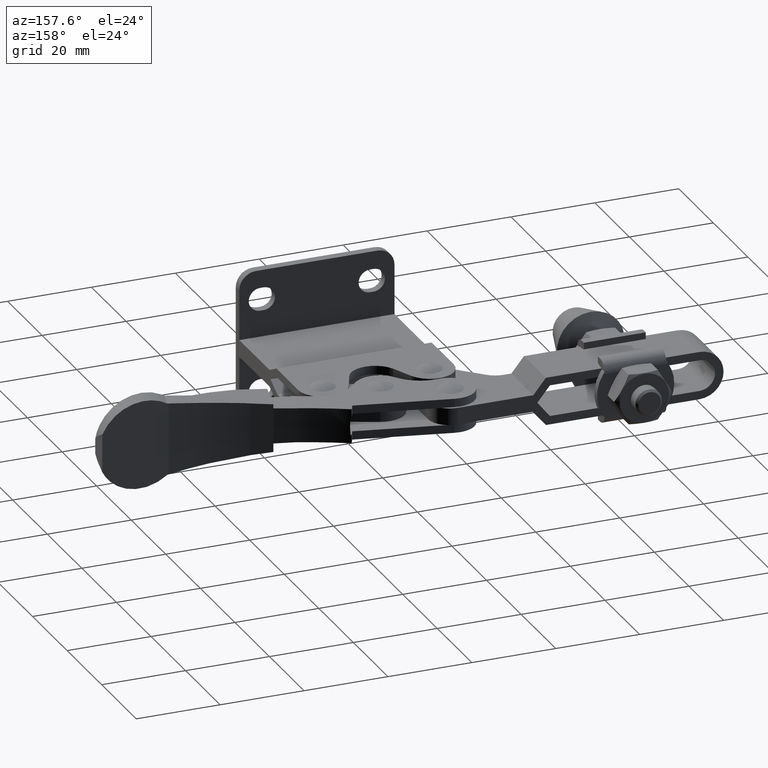
[diagram: clean part render]
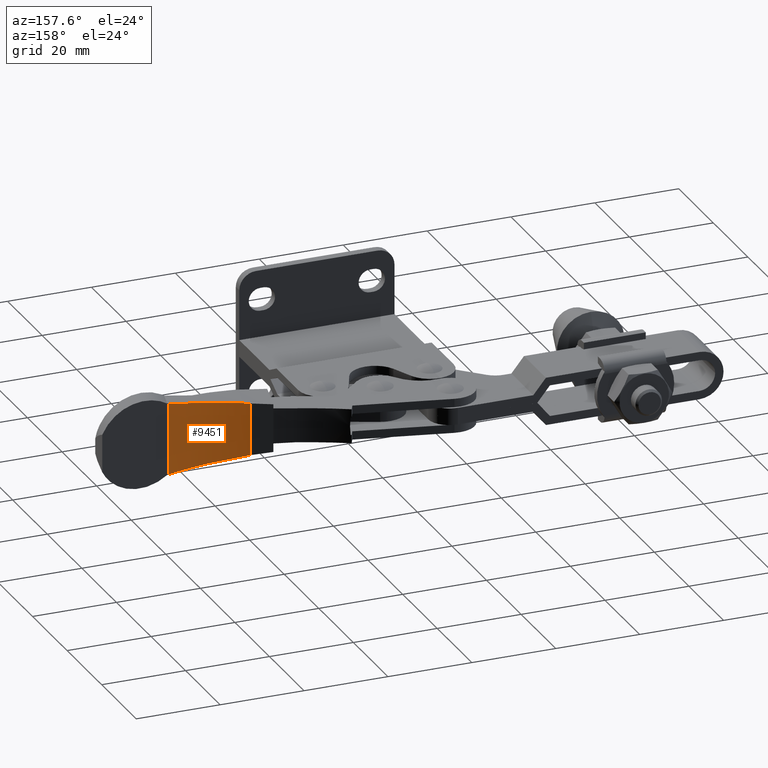
[diagram: same view with one face highlighted and labeled with its STEP entity id]
A machine part, auxiliary view. The second image highlights one B-rep face of the part: STEP entity #9451.
In plain terms, the highlighted cylindrical surface (partial cylindrical patch) has radius 78.8 mm, axis along (-0, 0, 1).
Its self-contained STEP definition (entity closure, byte-faithful):
#72 = CARTESIAN_POINT ( 'NONE',  ( 14.42767041798735200, 26.97503397521976300, 4.230005818732852400 ) ) ;
#238 = ORIENTED_EDGE ( 'NONE', *, *, #9620, .F. ) ;
#395 = CARTESIAN_POINT ( 'NONE',  ( 15.97146556828757400, 26.63097232074375500, -8.447964301841938800 ) ) ;
#443 = CARTESIAN_POINT ( 'NONE',  ( 15.97146556828753300, 26.63097232074376200, 4.447964301841707000 ) ) ;
#462 = CARTESIAN_POINT ( 'NONE',  ( 18.80223342967142500, 26.02984194345505700, -8.733842546678776100 ) ) ;
#506 = CARTESIAN_POINT ( 'NONE',  ( 18.80223342967128600, 26.02984194345509300, 4.733842546678547900 ) ) ;
#866 = CARTESIAN_POINT ( 'NONE',  ( 33.09676607689792100, 24.91577958649055400, -10.55881977615416300 ) ) ;
#1217 = EDGE_CURVE ( 'NONE', #4654, #6650, #8427, .T. ) ;
#1237 = CARTESIAN_POINT ( 'NONE',  ( 33.09676607689792100, 24.91577958649055400, -10.55881977615416300 ) ) ;
#1265 = CARTESIAN_POINT ( 'NONE',  ( 33.09676607689792100, 24.91577958649055400, 6.558819776154054500 ) ) ;
#1558 = VERTEX_POINT ( 'NONE', #72 ) ;
#1622 = VERTEX_POINT ( 'NONE', #1237 ) ;
#1940 = CARTESIAN_POINT ( 'NONE',  ( 15.97146556828757400, 26.63097232074375500, -8.447964301841938800 ) ) ;
#2009 = AXIS2_PLACEMENT_3D ( 'NONE', #3173, #5253, #6773 ) ;
#2091 = CYLINDRICAL_SURFACE ( 'NONE', #2009, 78.79999999999999700 ) ;
#2139 = CARTESIAN_POINT ( 'NONE',  ( 14.42767041798735200, 26.97503397521975900, -8.230005818733037200 ) ) ;
#2149 = CARTESIAN_POINT ( 'NONE',  ( 21.64483792207226300, 25.58866070633467200, 5.053658567342627500 ) ) ;
#2282 = DIRECTION ( 'NONE',  ( -8.501633020125902000E-021, 2.561732651537147600E-021, 1.000000000000000000 ) ) ;
#2588 = ORIENTED_EDGE ( 'NONE', *, *, #8261, .F. ) ;
#2592 = ORIENTED_EDGE ( 'NONE', *, *, #1217, .F. ) ;
#2745 = VERTEX_POINT ( 'NONE', #4115 ) ;
#2852 = EDGE_LOOP ( 'NONE', ( #2592, #6074, #8301, #238, #2588, #6849 ) ) ;
#3093 = LINE ( 'NONE', #5103, #6632 ) ;
#3173 = CARTESIAN_POINT ( 'NONE',  ( 32.34011100873916400, 103.7121467178998000, -24.50000000000008500 ) ) ;
#3548 = CARTESIAN_POINT ( 'NONE',  ( 14.94150241976940000, 26.85509220419678700, 4.297260227591530100 ) ) ;
#3682 = CARTESIAN_POINT ( 'NONE',  ( 30.21903856903799100, 24.88814573504700400, -10.14301611371463000 ) ) ;
#3686 = VERTEX_POINT ( 'NONE', #1265 ) ;
#3778 = CARTESIAN_POINT ( 'NONE',  ( 27.35324036018422700, 25.01780731453373400, -9.758242121814998200 ) ) ;
#3802 = CARTESIAN_POINT ( 'NONE',  ( 21.64483792207230200, 25.58866070633468600, -9.053658567342747400 ) ) ;
#4115 = CARTESIAN_POINT ( 'NONE',  ( 15.97146556828753300, 26.63097232074376200, 4.447964301841707000 ) ) ;
#4433 = EDGE_CURVE ( 'NONE', #2745, #1558, #5842, .T. ) ;
#4654 = VERTEX_POINT ( 'NONE', #9515 ) ;
#4759 = CARTESIAN_POINT ( 'NONE',  ( 14.42767041798735200, 26.97503397521976300, -24.50000000000008500 ) ) ;
#4837 = CARTESIAN_POINT ( 'NONE',  ( 27.35324036018420900, 25.01780731453373000, 5.758242121814880000 ) ) ;
#5091 = B_SPLINE_CURVE_WITH_KNOTS ( 'NONE', 3,
 ( #8169, #6810, #4837, #2149, #506, #443 ),
 .UNSPECIFIED., .F., .F.,
 ( 4, 2, 4 ),
 ( 0.0000000000000000000, 0.008669969931598386600, 0.01733993986319677300 ),
 .UNSPECIFIED. ) ;
#5103 = CARTESIAN_POINT ( 'NONE',  ( 33.09676607689792100, 24.91577958649055400, -24.50000000000008500 ) ) ;
#5253 = DIRECTION ( 'NONE',  ( -8.501633020125902000E-021, 2.561732651537147600E-021, 1.000000000000000000 ) ) ;
#5286 = VECTOR ( 'NONE', #8873, 1000.000000000000000 ) ;
#5842 = B_SPLINE_CURVE_WITH_KNOTS ( 'NONE', 3,
 ( #5972, #9163, #3548, #6086 ),
 .UNSPECIFIED., .F., .F.,
 ( 4, 4 ),
 ( 0.0000000000000000000, 0.001594953330921546300 ),
 .UNSPECIFIED. ) ;
#5878 = LINE ( 'NONE', #4759, #5286 ) ;
#5972 = CARTESIAN_POINT ( 'NONE',  ( 15.97146556828753300, 26.63097232074376200, 4.447964301841707000 ) ) ;
#6074 = ORIENTED_EDGE ( 'NONE', *, *, #7180, .T. ) ;
#6086 = CARTESIAN_POINT ( 'NONE',  ( 14.42767041798735200, 26.97503397521976300, 4.230005818732852400 ) ) ;
#6241 = EDGE_CURVE ( 'NONE', #6650, #1622, #8493, .T. ) ;
#6632 = VECTOR ( 'NONE', #2282, 1000.000000000000000 ) ;
#6650 = VERTEX_POINT ( 'NONE', #1940 ) ;
#6773 = DIRECTION ( 'NONE',  ( -0.2273152359232463700, -0.9738212276989852700, 0.0000000000000000000 ) ) ;
#6810 = CARTESIAN_POINT ( 'NONE',  ( 30.21903856903797300, 24.88814573504698300, 6.143016113714499400 ) ) ;
#6849 = ORIENTED_EDGE ( 'NONE', *, *, #6241, .F. ) ;
#7180 = EDGE_CURVE ( 'NONE', #4654, #1558, #5878, .T. ) ;
#7537 = FACE_OUTER_BOUND ( 'NONE', #2852, .T. ) ;
#8169 = CARTESIAN_POINT ( 'NONE',  ( 33.09676607689792100, 24.91577958649055400, 6.558819776154054500 ) ) ;
#8261 = EDGE_CURVE ( 'NONE', #1622, #3686, #3093, .T. ) ;
#8301 = ORIENTED_EDGE ( 'NONE', *, *, #4433, .F. ) ;
#8427 = B_SPLINE_CURVE_WITH_KNOTS ( 'NONE', 3,
 ( #2139, #9694, #9678, #9388 ),
 .UNSPECIFIED., .F., .F.,
 ( 4, 4 ),
 ( 0.005107139980654945400, 0.006702093311576539900 ),
 .UNSPECIFIED. ) ;
#8493 = B_SPLINE_CURVE_WITH_KNOTS ( 'NONE', 3,
 ( #395, #462, #3802, #3778, #3682, #866 ),
 .UNSPECIFIED., .F., .F.,
 ( 4, 2, 4 ),
 ( 0.0000000000000000000, 0.008669969931598358800, 0.01733993986319671800 ),
 .UNSPECIFIED. ) ;
#8873 = DIRECTION ( 'NONE',  ( -8.501633020125902000E-021, 2.561732651537147600E-021, 1.000000000000000000 ) ) ;
#9163 = CARTESIAN_POINT ( 'NONE',  ( 15.45610338444608300, 26.74041254303789500, 4.369907147800829800 ) ) ;
#9388 = CARTESIAN_POINT ( 'NONE',  ( 15.97146556828757400, 26.63097232074375500, -8.447964301841938800 ) ) ;
#9451 = ADVANCED_FACE ( 'NONE', ( #7537 ), #2091, .F. ) ;
#9515 = CARTESIAN_POINT ( 'NONE',  ( 14.42767041798735200, 26.97503397521975900, -8.230005818733037200 ) ) ;
#9620 = EDGE_CURVE ( 'NONE', #3686, #2745, #5091, .T. ) ;
#9678 = CARTESIAN_POINT ( 'NONE',  ( 15.45610338444608100, 26.74041254303789100, -8.369907147800999400 ) ) ;
#9694 = CARTESIAN_POINT ( 'NONE',  ( 14.94150241976941200, 26.85509220419677900, -8.297260227591717600 ) ) ;